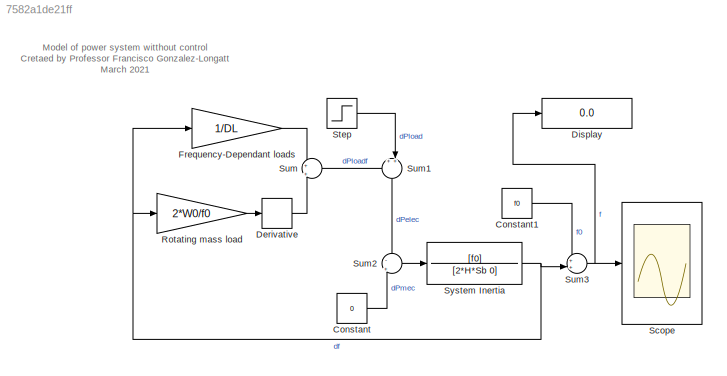
MODEL slx_7582a1de21ff
KIND model
CONFIG AbsTol = auto
CONFIG EnableMultiTasking = off
CONFIG FixedStep = auto
CONFIG InitFcn = H = 5;\nSb = 10000;\nf0 = 50;\nW0 = 100\nDL = 1/200;\ndPLoad = +1000
CONFIG MaxStep = auto
CONFIG MinStep = auto
CONFIG RelTol = 1e-3
CONFIG SampleTimeConstraint = Unconstrained
CONFIG SolverName = VariableStepAuto
CONFIG StartTime = 0.0
CONFIG StopTime = 60
BLOCK [Constant] Constant
  Value = 0
BLOCK [Constant] Constant1
  Value = f0
BLOCK [Derivative] Derivative
BLOCK [Display] Display
  Decimation = 1
  Ports = [1]
BLOCK [Gain] Frequency-Dependant loads
  Gain = 1/DL
BLOCK [Gain] Rotating mass load
  Gain = 2*W0/f0
BLOCK [Scope] Scope
  Floating = off
  NumInputPorts = 1
  Ports = [1]
  ScopeSpecificationString = Simulink.scopes.TimeScopeBlockCfg('CurrentConfiguration', extmgr.ConfigurationSet(extmgr.Configuration('Core','General UI',true),extmgr.Configuration('Core','Source UI',true),extmgr.Configuration('Sources','WiredSimulink',true),extmgr.Configuration('Visuals','Time Domain',true,'SerializedDisplays',{struct('MinYLimReal','49.43906','MaxYLimReal','50.06233','YLabelReal','','MinYLimMag','49.43906','Ma...<+1327ch>
BLOCK [Step] Step
  After = 100
  SampleTime = 0
BLOCK [Sum] Sum
  Inputs = +|+
  Ports = [2, 1]
BLOCK [Sum] Sum1
  Inputs = ++|
  NameLocation = left
  Ports = [2, 1]
BLOCK [Sum] Sum2
  Inputs = -|+
  Ports = [2, 1]
BLOCK [Sum] Sum3
  Inputs = ++|
  Ports = [2, 1]
BLOCK [TransferFcn] System Inertia
  Denominator = [2*H*Sb 0]
  Numerator = [f0]
ANNOTATION (root): Model of power system witthout control Cretaed by Professor Francisco Gonzalez-Longatt March 2021
LINE Constant1:1 -> Sum3:1
LINE Constant:1 -> Sum2:2
LINE Derivative:1 -> Sum:2
LINE Frequency-Dependant loads:1 -> Sum:1
LINE Rotating mass load:1 -> Derivative:1
LINE Step:1 -> Sum1:2
LINE Sum1:1 -> Sum2:1
LINE Sum2:1 -> System Inertia:1
NET Sum3:1 -> Display:1, Scope:1
LINE Sum:1 -> Sum1:1
NET System Inertia:1 -> Frequency-Dependant loads:1, Rotating mass load:1, Sum3:2
note: NET lines group one-source signal fan-out (src -> all destinations, sorted); 1:1 wires keep LINE
